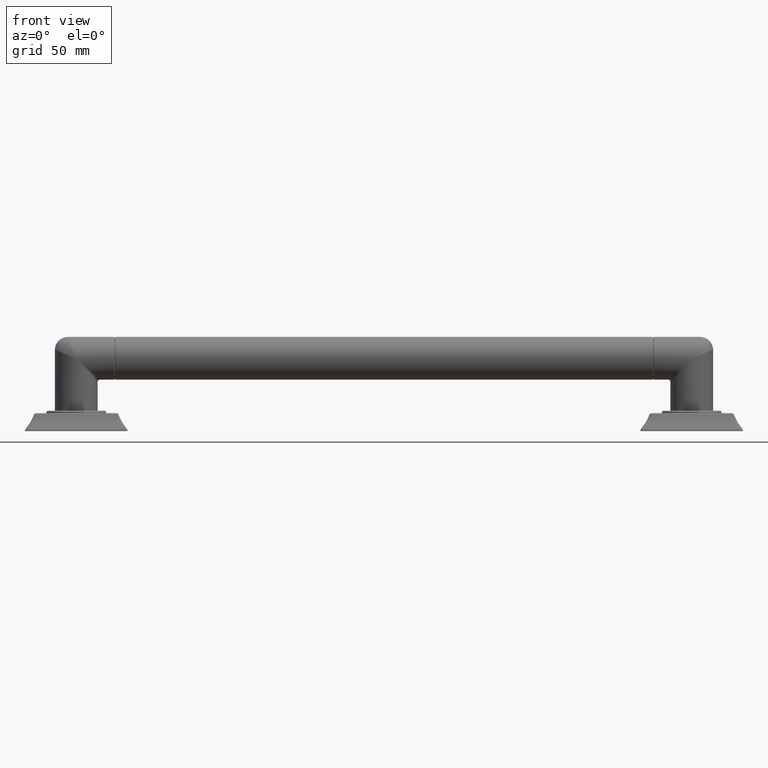
[diagram: clean part render]
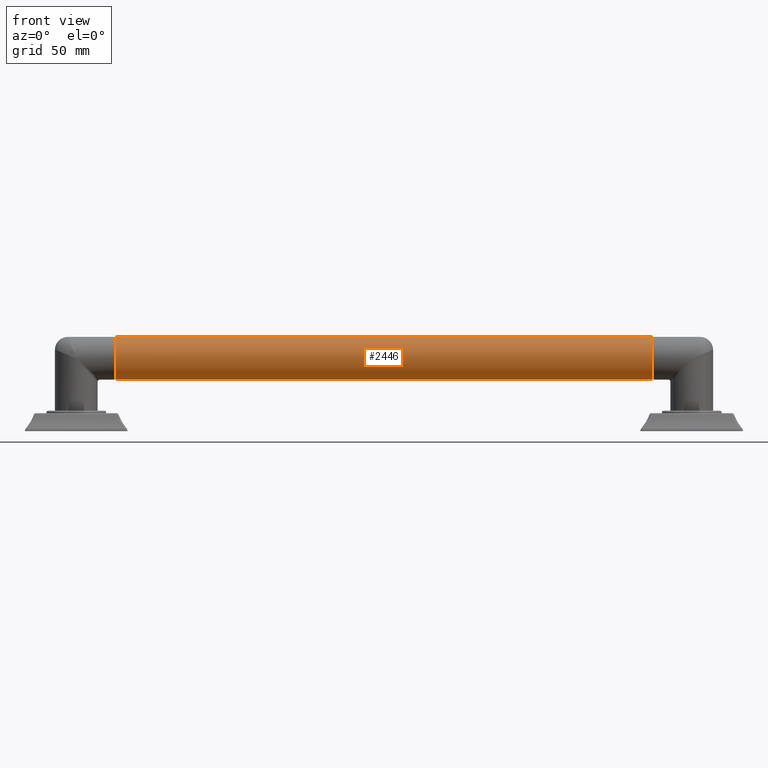
[diagram: same view with one face highlighted and labeled with its STEP entity id]
A machine part, front view. The second image highlights one B-rep face of the part: STEP entity #2446.
In plain terms, the highlighted cylindrical surface (edge-blend (fillet) strip) has radius 15.875 mm, axis along (-1, 0, 0).
Its self-contained STEP definition (entity closure, byte-faithful):
#586=CARTESIAN_POINT('',(1.145E0,0.E0,2.13E0));
#587=DIRECTION('',(-1.E0,0.E0,0.E0));
#588=DIRECTION('',(0.E0,0.E0,-1.E0));
#589=AXIS2_PLACEMENT_3D('',#586,#587,#588);
#591=CARTESIAN_POINT('',(1.6855E1,0.E0,2.13E0));
#592=DIRECTION('',(1.E0,0.E0,0.E0));
#593=DIRECTION('',(0.E0,0.E0,1.E0));
#594=AXIS2_PLACEMENT_3D('',#591,#592,#593);
#596=DIRECTION('',(-1.E0,0.E0,0.E0));
#597=VECTOR('',#596,1.571000000202E1);
#598=CARTESIAN_POINT('',(1.685500000101E1,4.781635968763E-9,1.505000001012E0));
#599=LINE('',#598,#597);
#610=DIRECTION('',(-1.E0,0.E0,0.E0));
#611=VECTOR('',#610,1.571000000202E1);
#612=CARTESIAN_POINT('',(1.685500000101E1,-4.781635892956E-9,2.754999998988E0));
#613=LINE('',#612,#611);
#1214=CARTESIAN_POINT('',(1.145E0,0.E0,2.755E0));
#1215=CARTESIAN_POINT('',(1.145E0,0.E0,1.505E0));
#1216=VERTEX_POINT('',#1214);
#1217=VERTEX_POINT('',#1215);
#1218=CARTESIAN_POINT('',(1.6855E1,0.E0,1.505E0));
#1219=CARTESIAN_POINT('',(1.6855E1,0.E0,2.755E0));
#1220=VERTEX_POINT('',#1218);
#1221=VERTEX_POINT('',#1219);
#2432=CARTESIAN_POINT('',(1.6875E1,0.E0,2.13E0));
#2433=DIRECTION('',(-1.E0,0.E0,0.E0));
#2434=DIRECTION('',(0.E0,0.E0,-1.E0));
#2435=AXIS2_PLACEMENT_3D('',#2432,#2433,#2434);
#2436=CYLINDRICAL_SURFACE('',#2435,6.25E-1);
#2437=ORIENTED_EDGE('',*,*,#2414,.T.);
#2439=ORIENTED_EDGE('',*,*,#2438,.F.);
#2441=ORIENTED_EDGE('',*,*,#2440,.T.);
#2443=ORIENTED_EDGE('',*,*,#2442,.T.);
#2444=EDGE_LOOP('',(#2437,#2439,#2441,#2443));
#2445=FACE_OUTER_BOUND('',#2444,.F.);
#2446=ADVANCED_FACE('',(#2445),#2436,.T.);
#590=CIRCLE('',#589,6.25E-1);
#595=CIRCLE('',#594,6.25E-1);
#2414=EDGE_CURVE('',#1217,#1216,#590,.T.);
#2438=EDGE_CURVE('',#1221,#1216,#613,.T.);
#2440=EDGE_CURVE('',#1221,#1220,#595,.T.);
#2442=EDGE_CURVE('',#1220,#1217,#599,.T.);